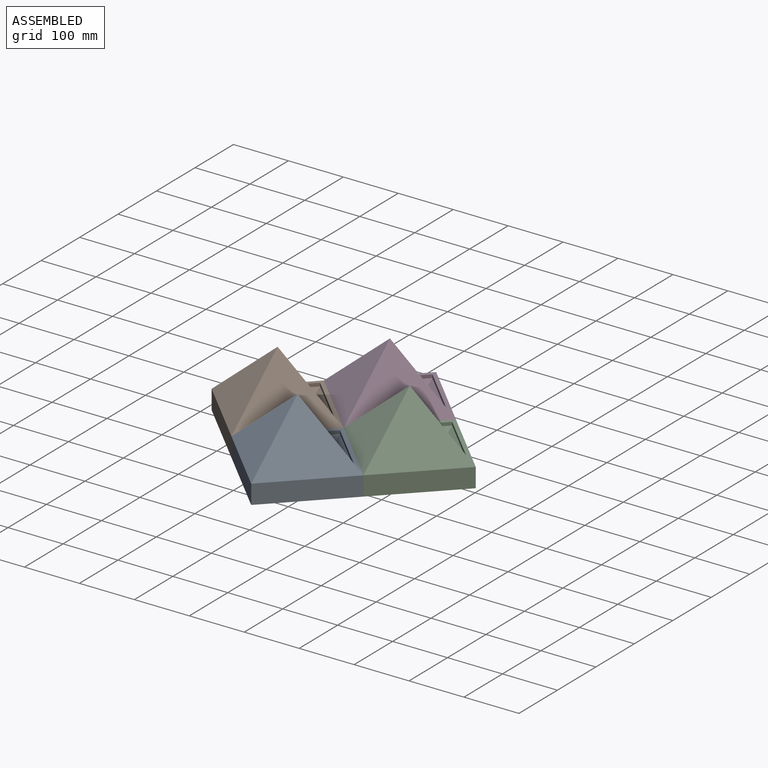
[diagram: assembled view]
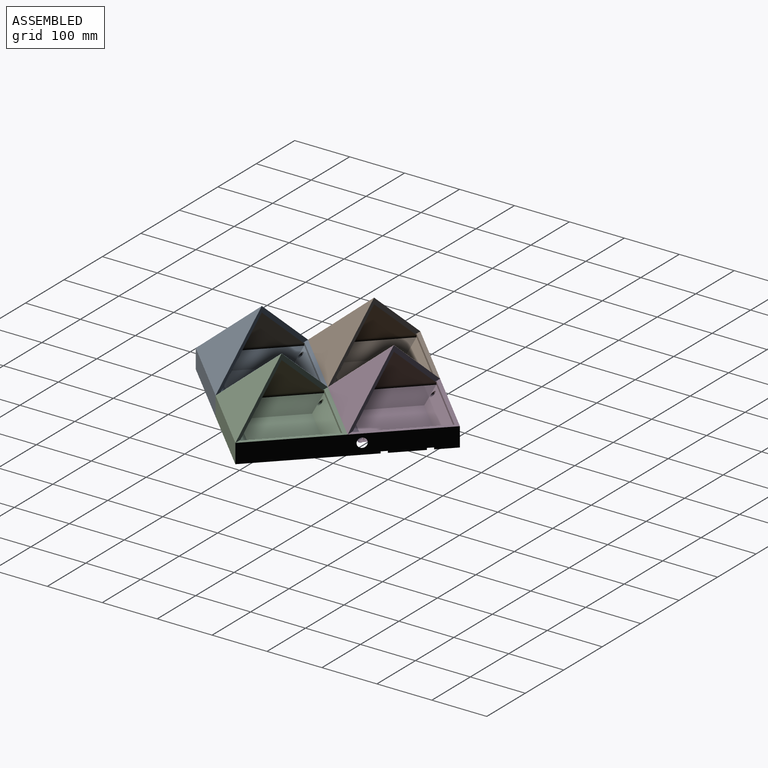
[diagram: assembled view, second angle]
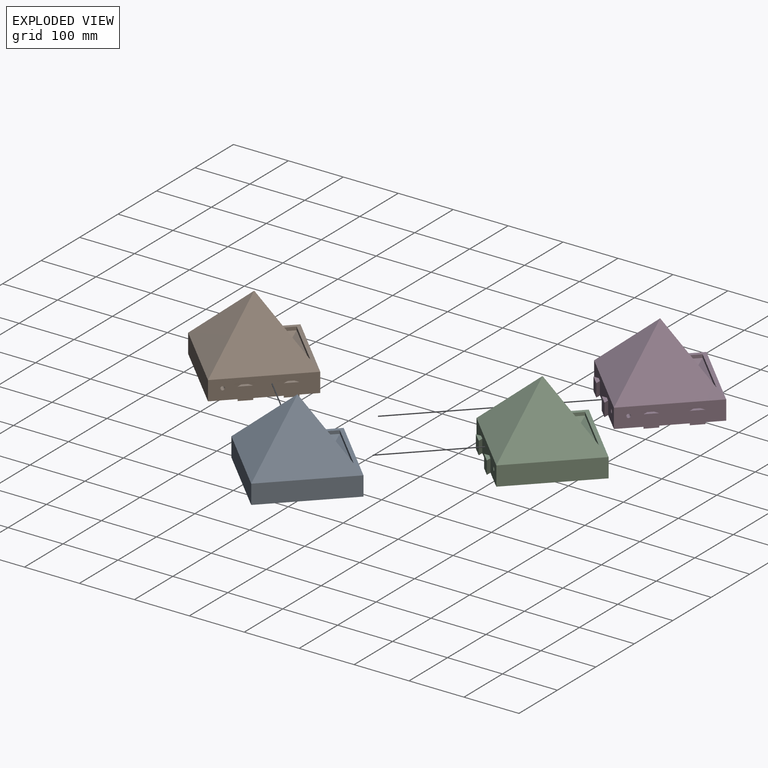
[diagram: exploded view]
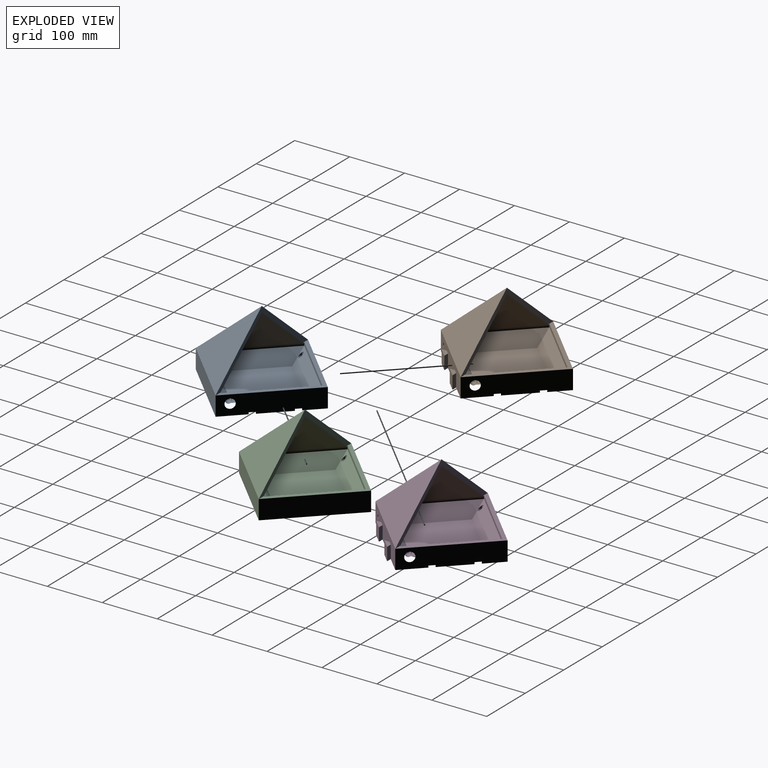
[diagram: exploded view, second angle]
ASSEMBLY  parts=4 mates=3
PART A: 40 faces, bbox 240.4x240.4x136.3 mm
  f0: plane 240.42x240.42mm, normal (0,0,-1), area 28396mm2, adj f2,f3,f4,f5,f22,f23,f24,f26
  f1: plane 240.42x120.21mm, normal (0,0,1), area 2286.6mm2, adj f4,f5,f6,f11,f12,f14,f15
  f2: plane 120.21x120.21mm, normal (-0.71,-0.71,0), area 5950mm2, adj f0,f3,f5,f7
  f3: plane 120.21x120.21mm, normal (0.71,-0.71,0), area 5950mm2, adj f0,f2,f4,f8
  f4: plane 120.21x120.21mm, normal (0.71,0.71,0), area 5173mm2, adj f0,f1,f3,f5,f20,f31,f32,f33
  f5: plane 120.21x120.21mm, normal (-0.71,0.71,0), area 5173mm2, adj f0,f1,f2,f4,f21,f22,f24,f25
  f6: plane 240.42x101.3mm, normal (0,1,0), area 2477.4mm2, adj f1,f7,f8,f14,f15
  f7: plane 120.21x120.21mm, normal (-0.54,-0.54,0.64), area 11240.1mm2, adj f2,f6,f8
  f8: plane 120.21x120.21mm, normal (0.54,-0.54,0.64), area 11240.1mm2, adj f3,f6,f7
  f9: plane 110.31x110.31mm, normal (0.71,0.71,0), area 141.1mm2, adj f10,f12,f19,f38
  f10: plane 110.31x110.31mm, normal (-0.71,0.71,0), area 141.1mm2, adj f9,f11,f18,f39
  f11: plane 110.31x110.31mm, normal (-0.71,-0.71,0), area 932.5mm2, adj f1,f10,f12,f15,f16,f39
  f12: plane 110.31x110.31mm, normal (0.71,-0.71,0), area 932.5mm2, adj f1,f9,f11,f14,f17,f38
  f13: plane 158.39x158.39mm, normal (0,0,1), area 12544mm2, adj f16,f17,f18,f19
  f14: plane 109.5x109.15mm, normal (0.54,0.54,-0.64), area 9073.2mm2, adj f1,f6,f12,f15,f38
  f15: plane 109.5x109.15mm, normal (-0.54,0.54,-0.64), area 9073.2mm2, adj f1,f6,f11,f14,f39
  f16: plane 110.31x110.31mm, normal (-0.5,-0.5,0.71), area 4073mm2, adj f11,f13,f17,f18,f20
  f17: plane 110.31x110.31mm, normal (0.5,-0.5,0.71), area 4073mm2, adj f12,f13,f16,f19,f21
  f18: plane 110.31x110.31mm, normal (-0.5,0.5,0.71), area 4169.1mm2, adj f10,f13,f16,f19
  f19: plane 110.31x110.31mm, normal (0.5,0.5,0.71), area 4169.1mm2, adj f9,f13,f17,f18
  f20: cone r=3.5mm half-angle=14deg, axis (0.71,0.71,0), area 655.6mm2, adj f4,f16
  f21: cone r=3.5mm half-angle=14deg, axis (-0.71,0.71,0), area 655.6mm2, adj f5,f17
  f22: plane 25x9.9mm, normal (1,0,0), area 247.5mm2, adj f0,f5,f23,f25
  f23: plane 25x17.68mm, normal (-0.71,0.71,0), area 625mm2, adj f0,f22,f24,f25
  f24: plane 25x9.9mm, normal (0,-1,0), area 247.5mm2, adj f0,f5,f23,f25
  f25: plane 17.68x17.68mm, normal (0,0,-1), area 126mm2, adj f5,f22,f23,f24
  f26: plane 25x17.68mm, normal (-0.71,0.71,0), area 625mm2, adj f0,f27,f28,f29
  f27: plane 25x9.9mm, normal (0,-1,0), area 247.5mm2, adj f0,f5,f26,f29
  f28: plane 25x9.9mm, normal (1,0,0), area 247.5mm2, adj f0,f5,f26,f29
  f29: plane 17.68x17.68mm, normal (0,0,-1), area 126mm2, adj f5,f26,f27,f28
  f30: plane 25x17.68mm, normal (0.71,0.71,0), area 625mm2, adj f0,f31,f32,f33
  f31: plane 25x9.9mm, normal (0,-1,0), area 247.5mm2, adj f0,f4,f30,f33
  f32: plane 25x9.9mm, normal (-1,0,0), area 247.5mm2, adj f0,f4,f30,f33
  f33: plane 17.68x17.68mm, normal (0,0,-1), area 126mm2, adj f4,f30,f31,f32
  f34: plane 25x9.9mm, normal (-1,0,0), area 247.5mm2, adj f0,f4,f35,f37
  f35: plane 25x17.68mm, normal (0.71,0.71,0), area 625mm2, adj f0,f34,f36,f37
  f36: plane 25x9.9mm, normal (0,-1,0), area 247.5mm2, adj f0,f4,f35,f37
  f37: plane 17.68x17.68mm, normal (0,0,-1), area 126mm2, adj f4,f34,f35,f36
  f38: cylinder r=7mm len=111.47mm, axis (0.71,-0.71,0), area 759.6mm2, adj f9,f12,f14,f39
  f39: cylinder r=7mm len=111.47mm, axis (0.71,0.71,0), area 759.6mm2, adj f10,f11,f15,f38
PART B: 40 faces, bbox 241.9x241.9x137.8 mm
  f0: plane 120.21x120.21mm, normal (0.71,-0.71,0), area 5415.1mm2, adj f1,f3,f4,f8,f20,f31,f32,f33
  f1: plane 240.42x240.42mm, normal (0,0,-1), area 28875.4mm2, adj f0,f3,f4,f5,f22,f23,f24,f26
  f2: plane 240.42x120.21mm, normal (0,0,1), area 2286.6mm2, adj f4,f5,f6,f11,f12,f14,f15
  f3: plane 120.21x120.21mm, normal (-0.71,-0.71,0), area 5950mm2, adj f0,f1,f5,f7
  f4: plane 120.21x120.21mm, normal (0.71,0.71,0), area 5173mm2, adj f0,f1,f2,f5,f21,f23,f24,f25
  f5: plane 120.21x120.21mm, normal (-0.71,0.71,0), area 5950mm2, adj f1,f2,f3,f4
  f6: plane 240.42x101.3mm, normal (0,1,0), area 2477.4mm2, adj f2,f7,f8,f14,f15
  f7: plane 120.21x120.21mm, normal (-0.54,-0.54,0.64), area 11240.1mm2, adj f3,f6,f8
  f8: plane 120.21x120.21mm, normal (0.54,-0.54,0.64), area 11240.1mm2, adj f0,f6,f7
  f9: plane 110.31x110.31mm, normal (0.71,0.71,0), area 141.1mm2, adj f10,f12,f19,f38
  f10: plane 110.31x110.31mm, normal (-0.71,0.71,0), area 141.1mm2, adj f9,f11,f18,f39
  f11: plane 110.31x110.31mm, normal (-0.71,-0.71,0), area 932.5mm2, adj f2,f10,f12,f15,f16,f39
  f12: plane 110.31x110.31mm, normal (0.71,-0.71,0), area 932.5mm2, adj f2,f9,f11,f14,f17,f38
  f13: plane 158.39x158.39mm, normal (0,0,1), area 12544mm2, adj f16,f17,f18,f19
  f14: plane 109.5x109.15mm, normal (0.54,0.54,-0.64), area 9073.2mm2, adj f2,f6,f12,f15,f38
  f15: plane 109.5x109.15mm, normal (-0.54,0.54,-0.64), area 9073.2mm2, adj f2,f6,f11,f14,f39
  f16: plane 110.31x110.31mm, normal (-0.5,-0.5,0.71), area 4073mm2, adj f11,f13,f17,f18,f21
  f17: plane 110.31x110.31mm, normal (0.5,-0.5,0.71), area 4169.1mm2, adj f12,f13,f16,f19
  f18: plane 111.78x111.78mm, normal (-0.5,0.5,0.71), area 4114.7mm2, adj f10,f13,f16,f19,f20
  f19: plane 110.31x110.31mm, normal (0.5,0.5,0.71), area 4169.1mm2, adj f9,f13,f17,f18
  f20: cylinder r=3.5mm len=18.93mm, axis (-0.71,0.71,0), area 355.3mm2, adj f0,f18
  f21: cone r=3.5mm half-angle=14deg, axis (0.71,0.71,0), area 655.6mm2, adj f4,f16
  f22: plane 25x17.68mm, normal (0.71,0.71,0), area 625mm2, adj f1,f23,f24,f25
  f23: plane 25x9.9mm, normal (0,-1,0), area 247.5mm2, adj f1,f4,f22,f25
  f24: plane 25x9.9mm, normal (-1,0,0), area 247.5mm2, adj f1,f4,f22,f25
  f25: plane 17.68x17.68mm, normal (0,0,-1), area 126mm2, adj f4,f22,f23,f24
  f26: plane 25x9.9mm, normal (-1,0,0), area 247.5mm2, adj f1,f4,f27,f29
  f27: plane 25x17.68mm, normal (0.71,0.71,0), area 625mm2, adj f1,f26,f28,f29
  f28: plane 25x9.9mm, normal (0,-1,0), area 247.5mm2, adj f1,f4,f27,f29
  f29: plane 17.68x17.68mm, normal (0,0,-1), area 126mm2, adj f4,f26,f27,f28
  f30: plane 23.75x16.79mm, normal (0.71,-0.71,0), area 564.1mm2, adj f1,f31,f32,f33
  f31: plane 23.75x9.4mm, normal (0,1,0), area 223.4mm2, adj f0,f1,f30,f33
  f32: plane 23.75x9.4mm, normal (-1,0,0), area 223.4mm2, adj f0,f1,f30,f33
  f33: plane 16.79x16.79mm, normal (0,0,1), area 113.7mm2, adj f0,f30,f31,f32
  f34: plane 23.75x9.4mm, normal (-1,0,0), area 223.4mm2, adj f0,f1,f35,f37
  f35: plane 23.75x16.79mm, normal (0.71,-0.71,0), area 564.1mm2, adj f1,f34,f36,f37
  f36: plane 23.75x9.4mm, normal (0,1,0), area 223.4mm2, adj f0,f1,f35,f37
  f37: plane 16.79x16.79mm, normal (0,0,1), area 113.7mm2, adj f0,f34,f35,f36
  f38: cylinder r=7mm len=111.47mm, axis (0.71,-0.71,0), area 758.4mm2, adj f9,f12,f14,f39
  f39: cylinder r=7mm len=111.47mm, axis (0.71,0.71,0), area 758.4mm2, adj f10,f11,f15,f38
PART C: 40 faces, bbox 241.9x241.9x137.8 mm
  f0: plane 120.21x120.21mm, normal (-0.71,-0.71,0), area 5415.1mm2, adj f2,f4,f5,f7,f20,f31,f32,f33
  f1: plane 240.42x120.21mm, normal (0,0,1), area 2286.6mm2, adj f3,f4,f6,f11,f12,f14,f15
  f2: plane 120.21x120.21mm, normal (0.71,-0.71,0), area 5950mm2, adj f0,f3,f5,f8
  f3: plane 120.21x120.21mm, normal (0.71,0.71,0), area 5950mm2, adj f1,f2,f4,f5
  f4: plane 120.21x120.21mm, normal (-0.71,0.71,0), area 5173mm2, adj f0,f1,f3,f5,f21,f23,f24,f25
  f5: plane 240.42x240.42mm, normal (0,0,-1), area 28875.4mm2, adj f0,f2,f3,f4,f22,f23,f24,f26
  f6: plane 240.42x101.3mm, normal (0,1,0), area 2477.4mm2, adj f1,f7,f8,f14,f15
  f7: plane 120.21x120.21mm, normal (-0.54,-0.54,0.64), area 11240.1mm2, adj f0,f6,f8
  f8: plane 120.21x120.21mm, normal (0.54,-0.54,0.64), area 11240.1mm2, adj f2,f6,f7
  f9: plane 110.31x110.31mm, normal (0.71,0.71,0), area 141.1mm2, adj f10,f12,f19,f38
  f10: plane 110.31x110.31mm, normal (-0.71,0.71,0), area 141.1mm2, adj f9,f11,f18,f39
  f11: plane 110.31x110.31mm, normal (-0.71,-0.71,0), area 932.5mm2, adj f1,f10,f12,f15,f16,f39
  f12: plane 110.31x110.31mm, normal (0.71,-0.71,0), area 932.5mm2, adj f1,f9,f11,f14,f17,f38
  f13: plane 158.39x158.39mm, normal (0,0,1), area 12544mm2, adj f16,f17,f18,f19
  f14: plane 109.5x109.15mm, normal (0.54,0.54,-0.64), area 9073.2mm2, adj f1,f6,f12,f15,f38
  f15: plane 109.5x109.15mm, normal (-0.54,0.54,-0.64), area 9073.2mm2, adj f1,f6,f11,f14,f39
  f16: plane 110.31x110.31mm, normal (-0.5,-0.5,0.71), area 4169.1mm2, adj f11,f13,f17,f18
  f17: plane 110.31x110.31mm, normal (0.5,-0.5,0.71), area 4073mm2, adj f12,f13,f16,f19,f21
  f18: plane 110.31x110.31mm, normal (-0.5,0.5,0.71), area 4169.1mm2, adj f10,f13,f16,f19
  f19: plane 111.78x111.78mm, normal (0.5,0.5,0.71), area 4114.7mm2, adj f9,f13,f17,f18,f20
  f20: cylinder r=3.5mm len=18.93mm, axis (0.71,0.71,0), area 355.3mm2, adj f0,f19
  f21: cone r=3.5mm half-angle=14deg, axis (-0.71,0.71,0), area 655.6mm2, adj f4,f17
  f22: plane 25x17.68mm, normal (-0.71,0.71,0), area 625mm2, adj f5,f23,f24,f25
  f23: plane 25x9.9mm, normal (0,-1,0), area 247.5mm2, adj f4,f5,f22,f25
  f24: plane 25x9.9mm, normal (1,0,0), area 247.5mm2, adj f4,f5,f22,f25
  f25: plane 17.68x17.68mm, normal (0,0,-1), area 126mm2, adj f4,f22,f23,f24
  f26: plane 25x9.9mm, normal (1,0,0), area 247.5mm2, adj f4,f5,f27,f29
  f27: plane 25x17.68mm, normal (-0.71,0.71,0), area 625mm2, adj f5,f26,f28,f29
  f28: plane 25x9.9mm, normal (0,-1,0), area 247.5mm2, adj f4,f5,f27,f29
  f29: plane 17.68x17.68mm, normal (0,0,-1), area 126mm2, adj f4,f26,f27,f28
  f30: plane 23.75x16.79mm, normal (-0.71,-0.71,0), area 564.1mm2, adj f5,f31,f32,f33
  f31: plane 23.75x9.4mm, normal (0,1,0), area 223.4mm2, adj f0,f5,f30,f33
  f32: plane 23.75x9.4mm, normal (1,0,0), area 223.4mm2, adj f0,f5,f30,f33
  f33: plane 16.79x16.79mm, normal (0,0,1), area 113.7mm2, adj f0,f30,f31,f32
  f34: plane 23.75x9.4mm, normal (1,0,0), area 223.4mm2, adj f0,f5,f35,f37
  f35: plane 23.75x16.79mm, normal (-0.71,-0.71,0), area 564.1mm2, adj f5,f34,f36,f37
  f36: plane 23.75x9.4mm, normal (0,1,0), area 223.4mm2, adj f0,f5,f35,f37
  f37: plane 16.79x16.79mm, normal (0,0,1), area 113.7mm2, adj f0,f34,f35,f36
  f38: cylinder r=7mm len=111.47mm, axis (0.71,-0.71,0), area 758.4mm2, adj f9,f12,f14,f39
  f39: cylinder r=7mm len=111.47mm, axis (0.71,0.71,0), area 758.4mm2, adj f10,f11,f15,f38
PART D: 58 faces, bbox 241.9x241.9x137.8 mm
  f0: plane 120.21x120.21mm, normal (-0.71,-0.71,0), area 5415.1mm2, adj f1,f2,f5,f7,f20,f48,f50,f51
  f1: plane 120.21x120.21mm, normal (0.71,-0.71,0), area 5415.1mm2, adj f0,f2,f4,f8,f21,f41,f42,f43
  f2: plane 240.42x240.42mm, normal (0,0,-1), area 28850.9mm2, adj f0,f1,f4,f5,f24,f25,f26,f28
  f3: plane 240.42x120.21mm, normal (0,0,1), area 2286.6mm2, adj f4,f5,f6,f11,f12,f14,f15
  f4: plane 120.21x120.21mm, normal (0.71,0.71,0), area 5173mm2, adj f1,f2,f3,f5,f22,f33,f34,f35
  f5: plane 120.21x120.21mm, normal (-0.71,0.71,0), area 5173mm2, adj f0,f2,f3,f4,f23,f24,f26,f27
  f6: plane 240.42x101.3mm, normal (0,1,0), area 2477.4mm2, adj f3,f7,f8,f14,f15
  f7: plane 120.21x120.21mm, normal (-0.54,-0.54,0.64), area 11240.1mm2, adj f0,f6,f8
  f8: plane 120.21x120.21mm, normal (0.54,-0.54,0.64), area 11240.1mm2, adj f1,f6,f7
  f9: plane 110.31x110.31mm, normal (0.71,0.71,0), area 141.1mm2, adj f10,f12,f19,f56
  f10: plane 110.31x110.31mm, normal (-0.71,0.71,0), area 141.1mm2, adj f9,f11,f18,f57
  f11: plane 110.31x110.31mm, normal (-0.71,-0.71,0), area 932.5mm2, adj f3,f10,f12,f15,f16,f57
  f12: plane 110.31x110.31mm, normal (0.71,-0.71,0), area 932.5mm2, adj f3,f9,f11,f14,f17,f56
  f13: plane 158.39x158.39mm, normal (0,0,1), area 12544mm2, adj f16,f17,f18,f19
  f14: plane 109.5x109.15mm, normal (0.54,0.54,-0.64), area 9073.2mm2, adj f3,f6,f12,f15,f56
  f15: plane 109.5x109.15mm, normal (-0.54,0.54,-0.64), area 9073.2mm2, adj f3,f6,f11,f14,f57
  f16: plane 110.31x110.31mm, normal (-0.5,-0.5,0.71), area 4073mm2, adj f11,f13,f17,f18,f22
  f17: plane 110.31x110.31mm, normal (0.5,-0.5,0.71), area 4073mm2, adj f12,f13,f16,f19,f23
  f18: plane 111.78x111.78mm, normal (-0.5,0.5,0.71), area 4114.7mm2, adj f10,f13,f16,f19,f21
  f19: plane 111.78x111.78mm, normal (0.5,0.5,0.71), area 4114.7mm2, adj f9,f13,f17,f18,f20
  f20: cylinder r=3.5mm len=18.93mm, axis (0.71,0.71,0), area 355.3mm2, adj f0,f19
  f21: cylinder r=3.5mm len=18.93mm, axis (-0.71,0.71,0), area 355.3mm2, adj f1,f18
  f22: cone r=8.5mm half-angle=14deg, axis (0.71,0.71,0), area 655.6mm2, adj f4,f16
  f23: cone r=8.5mm half-angle=14deg, axis (-0.71,0.71,0), area 655.6mm2, adj f5,f17
  f24: plane 25x9.9mm, normal (1,0,0), area 247.5mm2, adj f2,f5,f25,f27
  f25: plane 25x17.68mm, normal (-0.71,0.71,0), area 625mm2, adj f2,f24,f26,f27
  f26: plane 25x9.9mm, normal (0,-1,0), area 247.5mm2, adj f2,f5,f25,f27
  f27: plane 17.68x17.68mm, normal (0,0,-1), area 126mm2, adj f5,f24,f25,f26
  f28: plane 25x17.68mm, normal (-0.71,0.71,0), area 625mm2, adj f2,f29,f30,f31
  f29: plane 25x9.9mm, normal (0,-1,0), area 247.5mm2, adj f2,f5,f28,f31
  f30: plane 25x9.9mm, normal (1,0,0), area 247.5mm2, adj f2,f5,f28,f31
  f31: plane 17.68x17.68mm, normal (0,0,-1), area 126mm2, adj f5,f28,f29,f30
  f32: plane 25x17.68mm, normal (0.71,0.71,0), area 625mm2, adj f2,f33,f34,f35
  f33: plane 25x9.9mm, normal (0,-1,0), area 247.5mm2, adj f2,f4,f32,f35
  f34: plane 25x9.9mm, normal (-1,0,0), area 247.5mm2, adj f2,f4,f32,f35
  f35: plane 17.68x17.68mm, normal (0,0,-1), area 126mm2, adj f4,f32,f33,f34
  f36: plane 25x9.9mm, normal (-1,0,0), area 247.5mm2, adj f2,f4,f37,f39
  f37: plane 25x17.68mm, normal (0.71,0.71,0), area 625mm2, adj f2,f36,f38,f39
  f38: plane 25x9.9mm, normal (0,-1,0), area 247.5mm2, adj f2,f4,f37,f39
  f39: plane 17.68x17.68mm, normal (0,0,-1), area 126mm2, adj f4,f36,f37,f38
  f40: plane 23.75x16.79mm, normal (0.71,-0.71,0), area 564.1mm2, adj f2,f41,f42,f43
  f41: plane 23.75x9.4mm, normal (0,1,0), area 223.4mm2, adj f1,f2,f40,f43
  f42: plane 23.75x9.4mm, normal (-1,0,0), area 223.4mm2, adj f1,f2,f40,f43
  f43: plane 16.79x16.79mm, normal (0,0,1), area 113.7mm2, adj f1,f40,f41,f42
  f44: plane 23.75x9.4mm, normal (-1,0,0), area 223.4mm2, adj f1,f2,f45,f47
  f45: plane 23.75x16.79mm, normal (0.71,-0.71,0), area 564.1mm2, adj f2,f44,f46,f47
  f46: plane 23.75x9.4mm, normal (0,1,0), area 223.4mm2, adj f1,f2,f45,f47
  f47: plane 16.79x16.79mm, normal (0,0,1), area 113.7mm2, adj f1,f44,f45,f46
  f48: plane 23.75x9.4mm, normal (1,0,0), area 223.4mm2, adj f0,f2,f49,f51
  f49: plane 23.75x16.79mm, normal (-0.71,-0.71,0), area 564.1mm2, adj f2,f48,f50,f51
  f50: plane 23.75x9.4mm, normal (0,1,0), area 223.4mm2, adj f0,f2,f49,f51
  f51: plane 16.79x16.79mm, normal (0,0,1), area 113.7mm2, adj f0,f48,f49,f50
  f52: plane 23.75x16.79mm, normal (-0.71,-0.71,0), area 564.1mm2, adj f2,f53,f54,f55
  f53: plane 23.75x9.4mm, normal (0,1,0), area 223.4mm2, adj f0,f2,f52,f55
  f54: plane 23.75x9.4mm, normal (1,0,0), area 223.4mm2, adj f0,f2,f52,f55
  f55: plane 16.79x16.79mm, normal (0,0,1), area 113.7mm2, adj f0,f52,f53,f54
  f56: cylinder r=7mm len=111.47mm, axis (0.71,-0.71,0), area 758.4mm2, adj f9,f12,f14,f57
  f57: cylinder r=7mm len=111.47mm, axis (0.71,0.71,0), area 758.4mm2, adj f10,f11,f15,f56
PLACE A t=(364.11,455.03,-5.76)mm
PLACE B t=(243.9,575.24,-5.76)mm
PLACE C t=(484.32,575.24,-5.76)mm
PLACE D t=(364.11,695.45,-5.76)mm
MATE planar C.f0 <-> A.f4  axis (-0.71,-0.71,0) through (364.11,695.45,11.74)mm
MATE planar A.f5 <-> B.f0  axis (-0.71,0.71,0) through (243.9,575.24,11.74)mm
MATE planar D.f0 <-> B.f4  axis (-0.71,-0.71,0) through (364.11,695.45,11.74)mm
